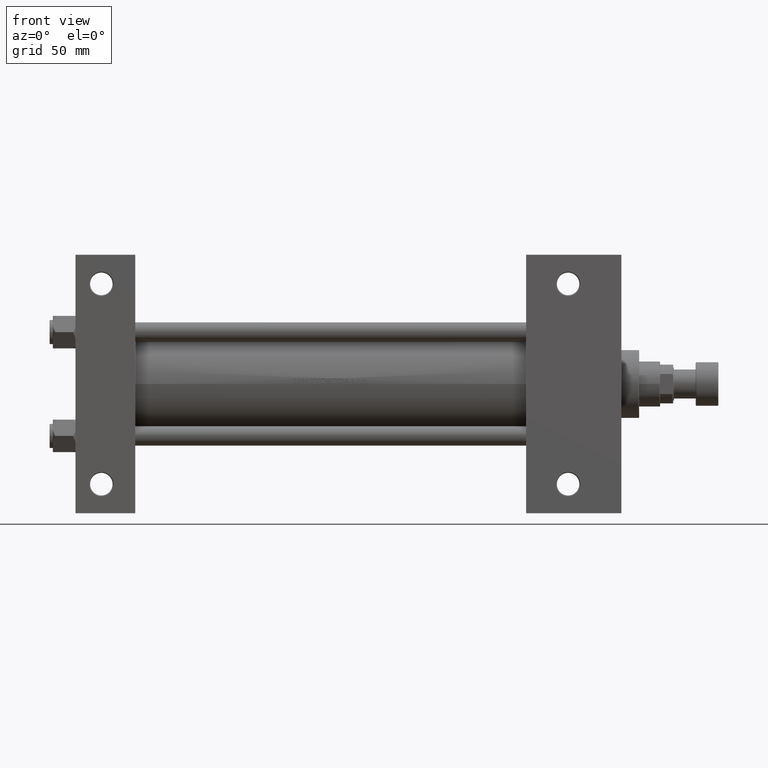
[diagram: clean part render]
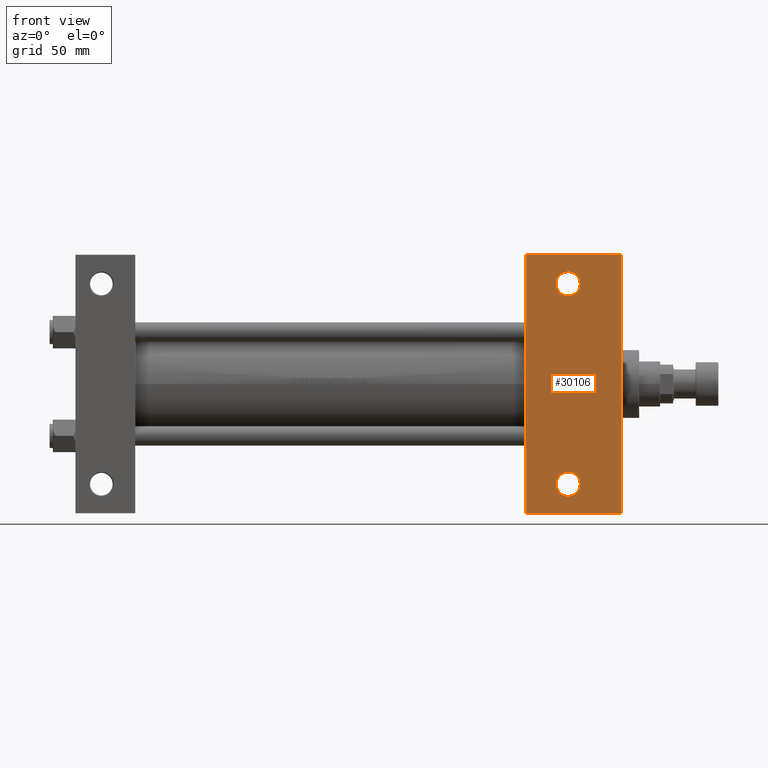
[diagram: same view with one face highlighted and labeled with its STEP entity id]
A machine part, front view. The second image highlights one B-rep face of the part: STEP entity #30106.
In plain terms, the highlighted planar face has unit normal (0, -1, 0).
Its self-contained STEP definition (entity closure, byte-faithful):
#474 = EDGE_CURVE ( 'NONE', #23703, #36915, #43634, .T. ) ;
#1377 = VERTEX_POINT ( 'NONE', #27156 ) ;
#3093 = AXIS2_PLACEMENT_3D ( 'NONE', #39983, #16438, #31906 ) ;
#5120 = EDGE_CURVE ( 'NONE', #36915, #24007, #15752, .T. ) ;
#7676 = CARTESIAN_POINT ( 'NONE',  ( 304.9999999999999432, -62.00000000000000000, -45.00000000000000000 ) ) ;
#8386 = DIRECTION ( 'NONE',  ( 0.000000000000000000, -1.000000000000000000, 0.000000000000000000 ) ) ;
#9177 = VERTEX_POINT ( 'NONE', #38967 ) ;
#9694 = CARTESIAN_POINT ( 'NONE',  ( 305.0000000000000000, 62.00000000000000711, -45.00000000000000000 ) ) ;
#9716 = LINE ( 'NONE', #17586, #38689 ) ;
#10483 = LINE ( 'NONE', #10967, #38481 ) ;
#10967 = CARTESIAN_POINT ( 'NONE',  ( 278.9999999999999432, 45.00000000000001421, -45.00000000000000000 ) ) ;
#11247 = DIRECTION ( 'NONE',  ( -0.000000000000000000, -0.000000000000000000, 1.000000000000000000 ) ) ;
#12327 = ORIENTED_EDGE ( 'NONE', *, *, #39509, .T. ) ;
#13990 = CIRCLE ( 'NONE', #20476, 7.499499999999937216 ) ;
#13991 = DIRECTION ( 'NONE',  ( -1.000000000000000000, 0.000000000000000000, -0.000000000000000000 ) ) ;
#15752 = LINE ( 'NONE', #27672, #20998 ) ;
#15777 = CARTESIAN_POINT ( 'NONE',  ( 337.9999999999999432, 79.99999999999998579, -45.00000000000000000 ) ) ;
#16199 = CIRCLE ( 'NONE', #26743, 7.499499999999992284 ) ;
#16438 = DIRECTION ( 'NONE',  ( -0.000000000000000000, -0.000000000000000000, 1.000000000000000000 ) ) ;
#17586 = CARTESIAN_POINT ( 'NONE',  ( 278.9999999999999432, -80.00000000000001421, -45.00000000000000000 ) ) ;
#17587 = EDGE_LOOP ( 'NONE', ( #12327, #48250 ) ) ;
#17632 = EDGE_CURVE ( 'NONE', #1377, #48071, #13990, .T. ) ;
#17813 = FACE_BOUND ( 'NONE', #44891, .T. ) ;
#19183 = VECTOR ( 'NONE', #27194, 1000.000000000000000 ) ;
#20476 = AXIS2_PLACEMENT_3D ( 'NONE', #9694, #40361, #36064 ) ;
#20998 = VECTOR ( 'NONE', #8386, 1000.000000000000000 ) ;
#21730 = AXIS2_PLACEMENT_3D ( 'NONE', #33771, #49204, #13991 ) ;
#23703 = VERTEX_POINT ( 'NONE', #30309 ) ;
#24007 = VERTEX_POINT ( 'NONE', #32880 ) ;
#26732 = DIRECTION ( 'NONE',  ( -1.000000000000000000, 0.000000000000000000, 0.000000000000000000 ) ) ;
#26743 = AXIS2_PLACEMENT_3D ( 'NONE', #28498, #29008, #33060 ) ;
#27156 = CARTESIAN_POINT ( 'NONE',  ( 312.4994999999999550, 62.00000000000000711, -45.00000000000000000 ) ) ;
#27194 = DIRECTION ( 'NONE',  ( 1.000000000000000000, 4.704334850106595794E-16, 0.000000000000000000 ) ) ;
#27672 = CARTESIAN_POINT ( 'NONE',  ( 337.9999999999999432, 45.00000000000001421, -45.00000000000000000 ) ) ;
#28041 = ORIENTED_EDGE ( 'NONE', *, *, #49142, .F. ) ;
#28494 = ORIENTED_EDGE ( 'NONE', *, *, #5120, .T. ) ;
#28498 = CARTESIAN_POINT ( 'NONE',  ( 304.9999999999999432, -62.00000000000000000, -45.00000000000000000 ) ) ;
#29008 = DIRECTION ( 'NONE',  ( -0.000000000000000000, -0.000000000000000000, 1.000000000000000000 ) ) ;
#30106 = ADVANCED_FACE ( 'NONE', ( #17813, #33286, #36798 ), #48709, .T. ) ;
#30309 = CARTESIAN_POINT ( 'NONE',  ( 278.9999999999999432, 79.99999999999995737, -45.00000000000000000 ) ) ;
#31906 = DIRECTION ( 'NONE',  ( -1.000000000000000000, 0.000000000000000000, 0.000000000000000000 ) ) ;
#32806 = DIRECTION ( 'NONE',  ( -1.000000000000000000, 4.704334850106595794E-16, -0.000000000000000000 ) ) ;
#32880 = CARTESIAN_POINT ( 'NONE',  ( 337.9999999999999432, -80.00000000000004263, -45.00000000000000000 ) ) ;
#33060 = DIRECTION ( 'NONE',  ( -1.000000000000000000, 0.000000000000000000, 0.000000000000000000 ) ) ;
#33286 = FACE_BOUND ( 'NONE', #17587, .T. ) ;
#33771 = CARTESIAN_POINT ( 'NONE',  ( 337.9999999999999432, 45.00000000000001421, -45.00000000000000000 ) ) ;
#33883 = ORIENTED_EDGE ( 'NONE', *, *, #17632, .T. ) ;
#33925 = ORIENTED_EDGE ( 'NONE', *, *, #474, .T. ) ;
#34215 = EDGE_CURVE ( 'NONE', #48071, #1377, #49192, .T. ) ;
#34744 = CARTESIAN_POINT ( 'NONE',  ( 278.9999999999999432, -80.00000000000001421, -45.00000000000000000 ) ) ;
#35081 = EDGE_CURVE ( 'NONE', #24007, #45725, #9716, .T. ) ;
#36064 = DIRECTION ( 'NONE',  ( -1.000000000000000000, 0.000000000000000000, 0.000000000000000000 ) ) ;
#36650 = ORIENTED_EDGE ( 'NONE', *, *, #34215, .T. ) ;
#36798 = FACE_OUTER_BOUND ( 'NONE', #38773, .T. ) ;
#36915 = VERTEX_POINT ( 'NONE', #15777 ) ;
#37595 = DIRECTION ( 'NONE',  ( 0.000000000000000000, -1.000000000000000000, 0.000000000000000000 ) ) ;
#38481 = VECTOR ( 'NONE', #37595, 1000.000000000000000 ) ;
#38689 = VECTOR ( 'NONE', #32806, 1000.000000000000000 ) ;
#38773 = EDGE_LOOP ( 'NONE', ( #28041, #33925, #28494, #41981 ) ) ;
#38828 = CARTESIAN_POINT ( 'NONE',  ( 278.9999999999999432, 79.99999999999995737, -45.00000000000000000 ) ) ;
#38967 = CARTESIAN_POINT ( 'NONE',  ( 312.4994999999999550, -62.00000000000000000, -45.00000000000000000 ) ) ;
#39509 = EDGE_CURVE ( 'NONE', #41954, #9177, #16199, .T. ) ;
#39983 = CARTESIAN_POINT ( 'NONE',  ( 305.0000000000000000, 62.00000000000000711, -45.00000000000000000 ) ) ;
#40094 = CARTESIAN_POINT ( 'NONE',  ( 297.5004999999999313, -62.00000000000000000, -45.00000000000000000 ) ) ;
#40361 = DIRECTION ( 'NONE',  ( -0.000000000000000000, -0.000000000000000000, 1.000000000000000000 ) ) ;
#41420 = CIRCLE ( 'NONE', #47875, 7.499499999999992284 ) ;
#41954 = VERTEX_POINT ( 'NONE', #40094 ) ;
#41981 = ORIENTED_EDGE ( 'NONE', *, *, #35081, .T. ) ;
#42582 = EDGE_CURVE ( 'NONE', #9177, #41954, #41420, .T. ) ;
#43634 = LINE ( 'NONE', #38828, #19183 ) ;
#43990 = CARTESIAN_POINT ( 'NONE',  ( 297.5005000000000450, 62.00000000000000711, -45.00000000000000000 ) ) ;
#44891 = EDGE_LOOP ( 'NONE', ( #36650, #33883 ) ) ;
#45725 = VERTEX_POINT ( 'NONE', #34744 ) ;
#47875 = AXIS2_PLACEMENT_3D ( 'NONE', #7676, #11247, #26732 ) ;
#48071 = VERTEX_POINT ( 'NONE', #43990 ) ;
#48250 = ORIENTED_EDGE ( 'NONE', *, *, #42582, .T. ) ;
#48709 = PLANE ( 'NONE',  #21730 ) ;
#49142 = EDGE_CURVE ( 'NONE', #23703, #45725, #10483, .T. ) ;
#49192 = CIRCLE ( 'NONE', #3093, 7.499499999999937216 ) ;
#49204 = DIRECTION ( 'NONE',  ( 0.000000000000000000, 0.000000000000000000, -1.000000000000000000 ) ) ;